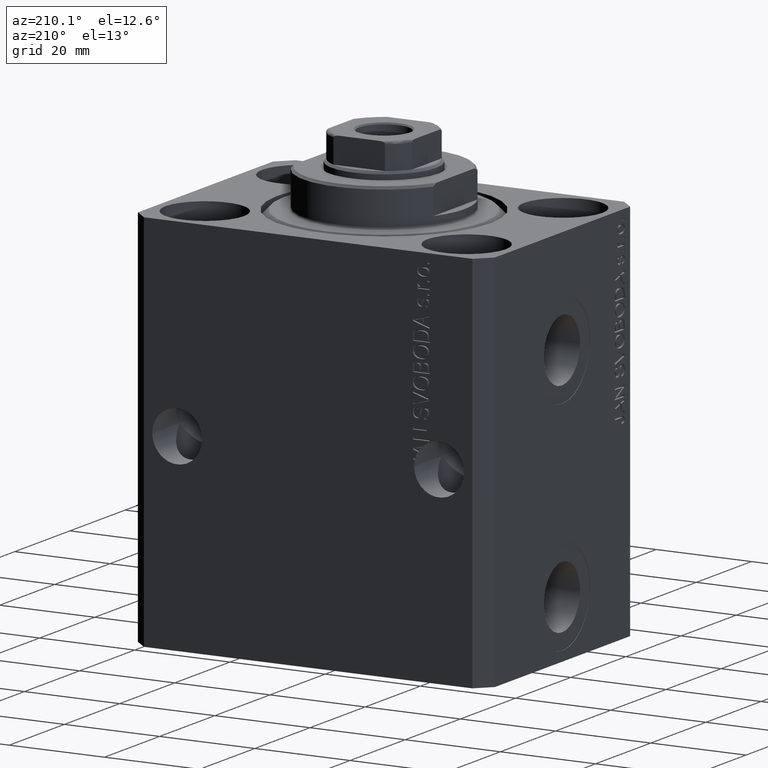
[diagram: clean part render]
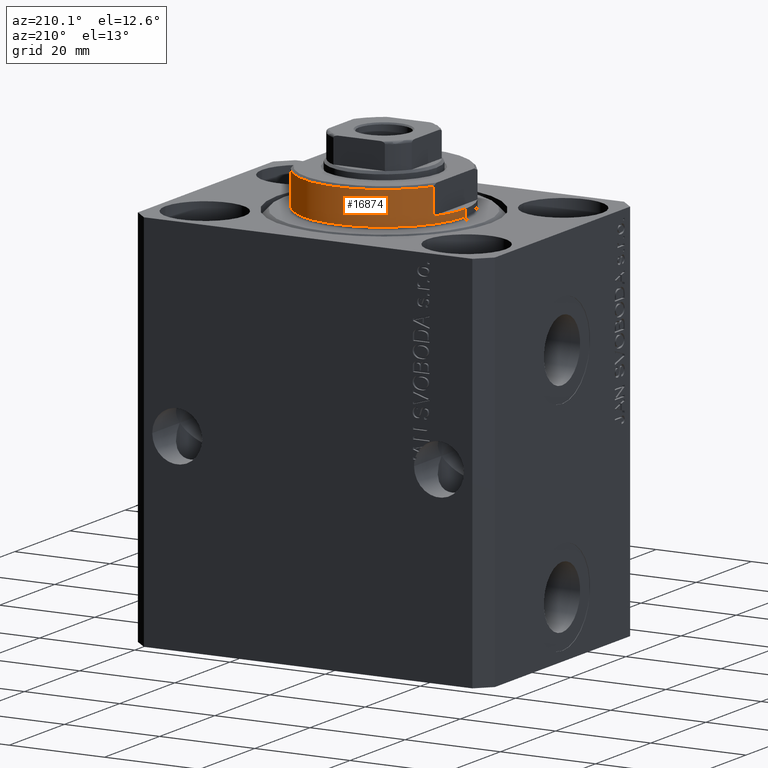
[diagram: same view with one face highlighted and labeled with its STEP entity id]
A machine part, auxiliary view. The second image highlights one B-rep face of the part: STEP entity #16874.
In plain terms, the highlighted cylindrical surface (partial cylindrical patch) has radius 17 mm, axis along (0, 0, -1).
Its self-contained STEP definition (entity closure, byte-faithful):
#306 = DIRECTION ( 'NONE',  ( -0.000000000000000000, -0.000000000000000000, -1.000000000000000000 ) ) ;
#371 = VERTEX_POINT ( 'NONE', #31873 ) ;
#1334 = VERTEX_POINT ( 'NONE', #18845 ) ;
#1358 = VERTEX_POINT ( 'NONE', #36441 ) ;
#1432 = CYLINDRICAL_SURFACE ( 'NONE', #37976, 17.00000000000000000 ) ;
#1642 = ORIENTED_EDGE ( 'NONE', *, *, #42490, .F. ) ;
#2140 = CARTESIAN_POINT ( 'NONE',  ( -17.00000000000000000, 2.081899558550500280E-15, -0.5000000000000004441 ) ) ;
#2345 = ORIENTED_EDGE ( 'NONE', *, *, #14652, .T. ) ;
#2715 = CIRCLE ( 'NONE', #43772, 17.00000000000000000 ) ;
#3911 = DIRECTION ( 'NONE',  ( 1.000000000000000000, 0.000000000000000000, 0.000000000000000000 ) ) ;
#4389 = ORIENTED_EDGE ( 'NONE', *, *, #9200, .T. ) ;
#4798 = DIRECTION ( 'NONE',  ( -1.000000000000000000, 0.000000000000000000, 0.000000000000000000 ) ) ;
#5243 = DIRECTION ( 'NONE',  ( 1.000000000000000000, 0.000000000000000000, 0.000000000000000000 ) ) ;
#5497 = DIRECTION ( 'NONE',  ( -1.000000000000000000, 0.000000000000000000, 0.000000000000000000 ) ) ;
#6368 = CARTESIAN_POINT ( 'NONE',  ( 0.000000000000000000, 0.000000000000000000, -2.000000000000000000 ) ) ;
#7450 = AXIS2_PLACEMENT_3D ( 'NONE', #6368, #30715, #40886 ) ;
#8401 = CARTESIAN_POINT ( 'NONE',  ( 0.000000000000000000, 0.000000000000000000, -2.000000000000000000 ) ) ;
#9200 = EDGE_CURVE ( 'NONE', #1334, #30789, #20891, .T. ) ;
#9322 = VERTEX_POINT ( 'NONE', #42705 ) ;
#10053 = ORIENTED_EDGE ( 'NONE', *, *, #19782, .F. ) ;
#10081 = CARTESIAN_POINT ( 'NONE',  ( -17.00000000000000000, 2.081899558550500280E-15, -8.000000000000000000 ) ) ;
#10241 = CARTESIAN_POINT ( 'NONE',  ( 0.000000000000000000, 0.000000000000000000, -7.500000000000007105 ) ) ;
#12307 = LINE ( 'NONE', #39171, #29836 ) ;
#13000 = CARTESIAN_POINT ( 'NONE',  ( 17.00000000000000000, 0.000000000000000000, -0.5000000000000004441 ) ) ;
#13912 = CIRCLE ( 'NONE', #7450, 17.00000000000000000 ) ;
#14220 = AXIS2_PLACEMENT_3D ( 'NONE', #10241, #40503, #5497 ) ;
#14652 = EDGE_CURVE ( 'NONE', #30789, #19312, #2715, .T. ) ;
#14843 = CARTESIAN_POINT ( 'NONE',  ( -14.99999999999999645, 8.000000000000003553, -2.000000000000000000 ) ) ;
#15734 = AXIS2_PLACEMENT_3D ( 'NONE', #8401, #21268, #4798 ) ;
#15846 = CARTESIAN_POINT ( 'NONE',  ( 0.000000000000000000, 0.000000000000000000, -8.000000000000000000 ) ) ;
#16664 = ORIENTED_EDGE ( 'NONE', *, *, #27724, .T. ) ;
#16874 = ADVANCED_FACE ( 'NONE', ( #42482 ), #1432, .T. ) ;
#17653 = EDGE_CURVE ( 'NONE', #9322, #1358, #43055, .T. ) ;
#18845 = CARTESIAN_POINT ( 'NONE',  ( -17.00000000000000000, 2.081899558550500280E-15, -2.000000000000000000 ) ) ;
#19312 = VERTEX_POINT ( 'NONE', #13000 ) ;
#19782 = EDGE_CURVE ( 'NONE', #1334, #37500, #32291, .T. ) ;
#20891 = LINE ( 'NONE', #10081, #42861 ) ;
#21268 = DIRECTION ( 'NONE',  ( 0.000000000000000000, 0.000000000000000000, -1.000000000000000000 ) ) ;
#23221 = DIRECTION ( 'NONE',  ( -0.000000000000000000, -0.000000000000000000, 1.000000000000000000 ) ) ;
#24676 = EDGE_LOOP ( 'NONE', ( #10053, #4389, #2345, #1642, #31447, #36793, #25800, #16664 ) ) ;
#25800 = ORIENTED_EDGE ( 'NONE', *, *, #17653, .T. ) ;
#27724 = EDGE_CURVE ( 'NONE', #1358, #37500, #33598, .T. ) ;
#29230 = DIRECTION ( 'NONE',  ( -0.000000000000000000, -0.000000000000000000, 1.000000000000000000 ) ) ;
#29836 = VECTOR ( 'NONE', #29230, 1000.000000000000000 ) ;
#30278 = LINE ( 'NONE', #44051, #35444 ) ;
#30715 = DIRECTION ( 'NONE',  ( 0.000000000000000000, 0.000000000000000000, -1.000000000000000000 ) ) ;
#30789 = VERTEX_POINT ( 'NONE', #2140 ) ;
#31266 = DIRECTION ( 'NONE',  ( -0.000000000000000000, -0.000000000000000000, 1.000000000000000000 ) ) ;
#31447 = ORIENTED_EDGE ( 'NONE', *, *, #40492, .F. ) ;
#31873 = CARTESIAN_POINT ( 'NONE',  ( 14.99999999999999645, 8.000000000000003553, -2.000000000000000000 ) ) ;
#32291 = CIRCLE ( 'NONE', #15734, 17.00000000000000000 ) ;
#32853 = EDGE_CURVE ( 'NONE', #9322, #371, #30278, .T. ) ;
#33598 = LINE ( 'NONE', #43988, #35252 ) ;
#33666 = CARTESIAN_POINT ( 'NONE',  ( 17.00000000000000000, 0.000000000000000000, -2.000000000000000000 ) ) ;
#35252 = VECTOR ( 'NONE', #23221, 1000.000000000000000 ) ;
#35262 = CARTESIAN_POINT ( 'NONE',  ( 0.000000000000000000, 0.000000000000000000, -0.5000000000000004441 ) ) ;
#35444 = VECTOR ( 'NONE', #37945, 1000.000000000000000 ) ;
#36441 = CARTESIAN_POINT ( 'NONE',  ( -15.00000000000000000, 8.000000000000001776, -7.500000000000007105 ) ) ;
#36793 = ORIENTED_EDGE ( 'NONE', *, *, #32853, .F. ) ;
#37500 = VERTEX_POINT ( 'NONE', #14843 ) ;
#37945 = DIRECTION ( 'NONE',  ( -0.000000000000000000, -0.000000000000000000, 1.000000000000000000 ) ) ;
#37976 = AXIS2_PLACEMENT_3D ( 'NONE', #15846, #39336, #5243 ) ;
#39171 = CARTESIAN_POINT ( 'NONE',  ( 17.00000000000000000, 0.000000000000000000, -8.000000000000000000 ) ) ;
#39336 = DIRECTION ( 'NONE',  ( -0.000000000000000000, -0.000000000000000000, 1.000000000000000000 ) ) ;
#40492 = EDGE_CURVE ( 'NONE', #371, #41790, #13912, .T. ) ;
#40503 = DIRECTION ( 'NONE',  ( 0.000000000000000000, 0.000000000000000000, 1.000000000000000000 ) ) ;
#40886 = DIRECTION ( 'NONE',  ( -1.000000000000000000, 0.000000000000000000, 0.000000000000000000 ) ) ;
#41790 = VERTEX_POINT ( 'NONE', #33666 ) ;
#42482 = FACE_OUTER_BOUND ( 'NONE', #24676, .T. ) ;
#42490 = EDGE_CURVE ( 'NONE', #41790, #19312, #12307, .T. ) ;
#42705 = CARTESIAN_POINT ( 'NONE',  ( 15.00000000000000000, 8.000000000000001776, -7.500000000000007105 ) ) ;
#42861 = VECTOR ( 'NONE', #31266, 1000.000000000000000 ) ;
#43055 = CIRCLE ( 'NONE', #14220, 17.00000000000000000 ) ;
#43772 = AXIS2_PLACEMENT_3D ( 'NONE', #35262, #306, #3911 ) ;
#43988 = CARTESIAN_POINT ( 'NONE',  ( -15.00000000000000000, 8.000000000000001776, -8.000000000000000000 ) ) ;
#44051 = CARTESIAN_POINT ( 'NONE',  ( 15.00000000000000000, 8.000000000000001776, -8.000000000000000000 ) ) ;